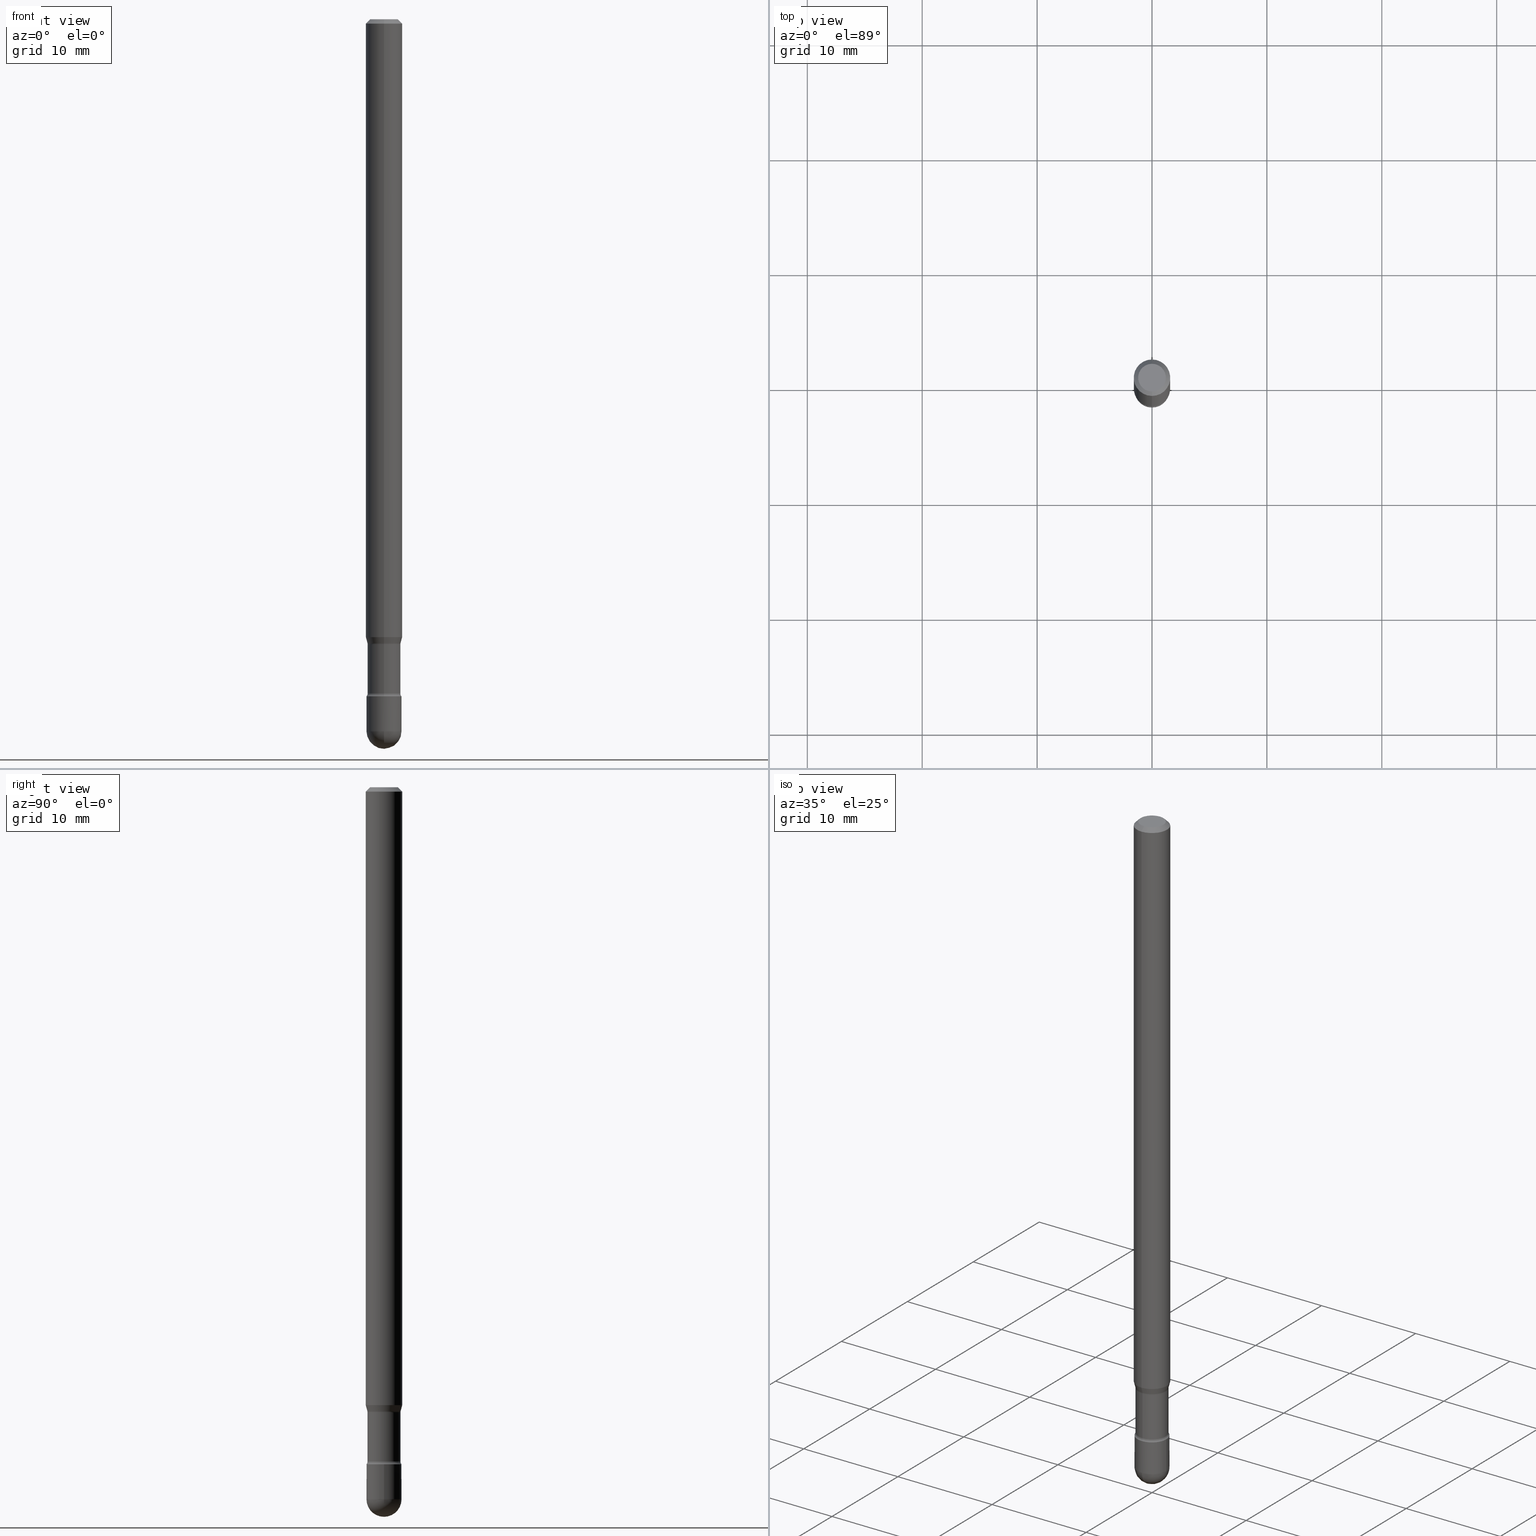
[diagram: canonical four-view strip — front | top / right | iso, engineering-drawing reading convention]
A machine part, canonical four-view strip (front | top / right | iso — engineering-drawing reading convention). The complete STEP part file that produces these views, byte-faithful:
ISO-10303-21;
HEADER;
FILE_DESCRIPTION (( 'STEP AP203' ),
    '1' );
FILE_NAME ('03831.STEP',
    '2024-04-09T20:39:17',
    ( '' ),
    ( '' ),
    'SwSTEP 2.0',
    'SolidWorks 2023',
    '' );
FILE_SCHEMA (( 'CONFIG_CONTROL_DESIGN' ));
ENDSEC;

DATA;
#1 = CARTESIAN_POINT ( 'NONE',  ( 5.228743345129894784E-29, -7.464959952092564511E-15, -2.138092501787273392 ) ) ;
#2 = ORIENTED_EDGE ( 'NONE', *, *, #38, .T. ) ;
#3 = EDGE_CURVE ( 'NONE', #201, #42, #99, .T. ) ;
#4 = CARTESIAN_POINT ( 'NONE',  ( 0.000000000000000000, 0.000000000000000000, 0.000000000000000000 ) ) ;
#5 = DIRECTION ( 'NONE',  ( -2.445517834592790864E-29, 3.491411127372861124E-15, 1.000000000000000000 ) ) ;
#6 = CARTESIAN_POINT ( 'NONE',  ( -0.05999999999999999084, -7.883399944990626241E-15, -2.440000000000000391 ) ) ;
#7 = ORIENTED_EDGE ( 'NONE', *, *, #370, .F. ) ;
#8 = CARTESIAN_POINT ( 'NONE',  ( 0.05999999999999999084, -8.728703347107863365E-15, -2.440000000000000391 ) ) ;
#9 = PLANE ( 'NONE',  #46 ) ;
#10 = EDGE_LOOP ( 'NONE', ( #24, #406, #297, #288 ) ) ;
#11 = AXIS2_PLACEMENT_3D ( 'NONE', #533, #375, #50 ) ;
#12 = EDGE_CURVE ( 'NONE', #66, #416, #283, .T. ) ;
#13 = AXIS2_PLACEMENT_3D ( 'NONE', #161, #514, #35 ) ;
#14 = CARTESIAN_POINT ( 'NONE',  ( -3.974081752708996825E-16, -0.05691111260567144337, -2.138092501787272948 ) ) ;
#15 = DIRECTION ( 'NONE',  ( -6.982962677686265922E-15, -1.000000000000000000, 4.370956789862821150E-15 ) ) ;
#16 = ORIENTED_EDGE ( 'NONE', *, *, #387, .T. ) ;
#17 = ORIENTED_EDGE ( 'NONE', *, *, #187, .F. ) ;
#18 =( LENGTH_UNIT ( ) NAMED_UNIT ( * ) SI_UNIT ( $, .METRE. ) );
#19 = PERSON ( 'UNSPECIFIED', 'UNSPECIFIED', 'UNSPECIFIED', ('UNSPECIFIED'), ('UNSPECIFIED'), ('UNSPECIFIED') ) ;
#20 =( GEOMETRIC_REPRESENTATION_CONTEXT ( 3 ) GLOBAL_UNCERTAINTY_ASSIGNED_CONTEXT ( ( #261 ) ) GLOBAL_UNIT_ASSIGNED_CONTEXT ( ( #335, #544, #548 ) ) REPRESENTATION_CONTEXT ( 'NONE', 'WORKASPACE' ) );
#21 = DIRECTION ( 'NONE',  ( -2.445468806185136597E-29, 3.491481338843145583E-15, 1.000000000000000000 ) ) ;
#22 = ORIENTED_EDGE ( 'NONE', *, *, #94, .T. ) ;
#23 = CARTESIAN_POINT ( 'NONE',  ( -4.364351673553912750E-16, -0.06250000000000005551, -0.01499999999999986587 ) ) ;
#24 = ORIENTED_EDGE ( 'NONE', *, *, #3, .F. ) ;
#25 = DIRECTION ( 'NONE',  ( -2.445468806185136877E-29, 3.491481338843145188E-15, 1.000000000000000000 ) ) ;
#26 = EDGE_LOOP ( 'NONE', ( #284, #22, #129, #394 ) ) ;
#27 = DIRECTION ( 'NONE',  ( -2.445517834592790864E-29, 3.491411127372861124E-15, 1.000000000000000000 ) ) ;
#28 = ADVANCED_FACE ( 'NONE', ( #539 ), #144, .T. ) ;
#29 = CIRCLE ( 'NONE', #523, 0.04749999999999999362 ) ;
#30 = COORDINATED_UNIVERSAL_TIME_OFFSET ( 5, 0, .BEHIND. ) ;
#31 = DIRECTION ( 'NONE',  ( 2.445517834592790864E-29, -3.491411127372861124E-15, -1.000000000000000000 ) ) ;
#32 = ORIENTED_EDGE ( 'NONE', *, *, #309, .T. ) ;
#33 = LINE ( 'NONE', #430, #163 ) ;
#34 = APPROVAL_STATUS ( 'not_yet_approved' ) ;
#35 = DIRECTION ( 'NONE',  ( 1.000000000000000000, -6.982962677686269077E-15, 0.000000000000000000 ) ) ;
#36 = ORIENTED_EDGE ( 'NONE', *, *, #477, .F. ) ;
#37 = PERSON_AND_ORGANIZATION ( #19, #222 ) ;
#38 = EDGE_CURVE ( 'NONE', #486, #419, #64, .T. ) ;
#39 = DIRECTION ( 'NONE',  ( -6.982962677686265922E-15, -1.000000000000000000, 3.491411127372860730E-15 ) ) ;
#40 = CARTESIAN_POINT ( 'NONE',  ( 4.440892098501144838E-16, 0.06249999999999263089, -2.117234490073830244 ) ) ;
#41 = ORIENTED_EDGE ( 'NONE', *, *, #432, .T. ) ;
#42 = VERTEX_POINT ( 'NONE', #399 ) ;
#43 = DIRECTION ( 'NONE',  ( -2.445517834592790864E-29, 3.491411127372861124E-15, 1.000000000000000000 ) ) ;
#44 = ADVANCED_FACE ( 'NONE', ( #277 ), #88, .F. ) ;
#45 = AXIS2_PLACEMENT_3D ( 'NONE', #166, #357, #176 ) ;
#46 = AXIS2_PLACEMENT_3D ( 'NONE', #363, #393, #535 ) ;
#47 = DIRECTION ( 'NONE',  ( -6.982962677686265922E-15, -1.000000000000000000, 4.800201346603757313E-15 ) ) ;
#48 = VERTEX_POINT ( 'NONE', #565 ) ;
#49 = DIRECTION ( 'NONE',  ( -2.445468806185136597E-29, 3.491481338843145583E-15, 1.000000000000000000 ) ) ;
#50 = DIRECTION ( 'NONE',  ( -6.982962677686265133E-15, -1.000000000000000000, 4.843702116425997641E-15 ) ) ;
#51 = ADVANCED_FACE ( 'NONE', ( #266 ), #154, .F. ) ;
#52 = DIRECTION ( 'NONE',  ( -2.445517834592790864E-29, 3.491411127372860730E-15, 1.000000000000000000 ) ) ;
#53 = FACE_OUTER_BOUND ( 'NONE', #251, .T. ) ;
#54 = ORIENTED_EDGE ( 'NONE', *, *, #187, .T. ) ;
#55 = CIRCLE ( 'NONE', #540, 0.05639999999999998487 ) ;
#56 = VECTOR ( 'NONE', #262, 39.37007874015748143 ) ;
#57 = VECTOR ( 'NONE', #102, 39.37007874015748143 ) ;
#58 = CARTESIAN_POINT ( 'NONE',  ( 3.668276751889206264E-31, -5.237116691059320726E-17, -0.01500000000000008271 ) ) ;
#59 = ORIENTED_EDGE ( 'NONE', *, *, #177, .F. ) ;
#60 = DIRECTION ( 'NONE',  ( 0.000000000000000000, 0.000000000000000000, 1.000000000000000000 ) ) ;
#61 = EDGE_LOOP ( 'NONE', ( #36, #97, #150, #373 ) ) ;
#62 = EDGE_CURVE ( 'NONE', #348, #566, #446, .T. ) ;
#63 = ORIENTED_EDGE ( 'NONE', *, *, #344, .T. ) ;
#64 = CIRCLE ( 'NONE', #45, 0.05999999999999994921 ) ;
#65 = CARTESIAN_POINT ( 'NONE',  ( 5.966943887091733341E-29, -8.519214466777275048E-15, -2.440000000000000391 ) ) ;
#66 = VERTEX_POINT ( 'NONE', #270 ) ;
#67 = CARTESIAN_POINT ( 'NONE',  ( -4.189777606611192441E-16, -0.06000000000000810241, -2.319999999999999840 ) ) ;
#68 = ORIENTED_EDGE ( 'NONE', *, *, #256, .F. ) ;
#69 = EDGE_CURVE ( 'NONE', #48, #148, #417, .T. ) ;
#70 = FACE_OUTER_BOUND ( 'NONE', #556, .T. ) ;
#71 = CARTESIAN_POINT ( 'NONE',  ( -1.169113584055446105E-44, 1.669184350826100908E-30, 4.780733988912460139E-16 ) ) ;
#72 = ORIENTED_EDGE ( 'NONE', *, *, #86, .T. ) ;
#73 = VECTOR ( 'NONE', #52, 39.37007874015748143 ) ;
#74 = DATE_TIME_ROLE ( 'classification_date' ) ;
#75 = ADVANCED_FACE ( 'NONE', ( #263 ), #273, .T. ) ;
#76 = VERTEX_POINT ( 'NONE', #6 ) ;
#77 = CARTESIAN_POINT ( 'NONE',  ( 4.043777764598483226E-16, 0.05691111260565651780, -2.138092501787273392 ) ) ;
#78 = APPROVAL ( #460, 'UNSPECIFIED' ) ;
#79 = CALENDAR_DATE ( 2024, 9, 4 ) ;
#80 = FACE_OUTER_BOUND ( 'NONE', #10, .T. ) ;
#81 = CIRCLE ( 'NONE', #491, 0.05639999999999998487 ) ;
#82 = APPROVAL_DATE_TIME ( #561, #327 ) ;
#83 = TOROIDAL_SURFACE ( 'NONE', #305, 0.07139999999999999125, 0.01500000000000002373 ) ;
#84 = DIRECTION ( 'NONE',  ( -6.982962677686265922E-15, -1.000000000000000000, 3.491411127372861124E-15 ) ) ;
#85 = FACE_OUTER_BOUND ( 'NONE', #552, .T. ) ;
#86 = EDGE_CURVE ( 'NONE', #367, #42, #55, .T. ) ;
#87 = DIRECTION ( 'NONE',  ( -2.445517834592790864E-29, 3.491411127372860730E-15, 1.000000000000000000 ) ) ;
#88 = PLANE ( 'NONE',  #173 ) ;
#89 = CARTESIAN_POINT ( 'NONE',  ( 6.116237514330379097E-29, -8.725029406710421437E-15, -2.500000000000000000 ) ) ;
#90 = PRODUCT_DEFINITION ( 'UNKNOWN', '', #183, #165 ) ;
#91 = CARTESIAN_POINT ( 'NONE',  ( 5.228743345129894784E-29, -7.464959952092564511E-15, -2.138092501787273392 ) ) ;
#92 = APPROVAL_PERSON_ORGANIZATION ( #507, #78, #190 ) ;
#93 = DIRECTION ( 'NONE',  ( -6.982962677686265133E-15, -1.000000000000000000, 4.843702116426000007E-15 ) ) ;
#94 = EDGE_CURVE ( 'NONE', #486, #443, #162, .T. ) ;
#95 = CARTESIAN_POINT ( 'NONE',  ( 5.649647131350973229E-29, -8.066198791933100712E-15, -2.310251153914436806 ) ) ;
#96 = FACE_OUTER_BOUND ( 'NONE', #366, .T. ) ;
#97 = ORIENTED_EDGE ( 'NONE', *, *, #194, .F. ) ;
#98 = CYLINDRICAL_SURFACE ( 'NONE', #368, 0.06250000000000000000 ) ;
#99 = LINE ( 'NONE', #286, #57 ) ;
#100 = AXIS2_PLACEMENT_3D ( 'NONE', #479, #342, #170 ) ;
#101 = CIRCLE ( 'NONE', #145, 0.05999999999999999778 ) ;
#102 = DIRECTION ( 'NONE',  ( -2.445517834592790864E-29, 3.491411127372860730E-15, 1.000000000000000000 ) ) ;
#103 = ADVANCED_FACE ( 'NONE', ( #53 ), #254, .F. ) ;
#104 = EDGE_LOOP ( 'NONE', ( #499, #440, #171, #421 ) ) ;
#105 = CARTESIAN_POINT ( 'NONE',  ( 2.023909377797069351E-45, -2.888819863080917368E-31, -8.275036711638382857E-17 ) ) ;
#106 = ORIENTED_EDGE ( 'NONE', *, *, #495, .T. ) ;
#107 = CC_DESIGN_PERSON_AND_ORGANIZATION_ASSIGNMENT ( #341, #160, ( #466 ) ) ;
#108 = ORIENTED_EDGE ( 'NONE', *, *, #132, .T. ) ;
#109 = CARTESIAN_POINT ( 'NONE',  ( -1.169113584055446105E-44, 1.669184350826100908E-30, 4.780733988912460139E-16 ) ) ;
#110 = AXIS2_PLACEMENT_3D ( 'NONE', #169, #353, #84 ) ;
#111 = CONICAL_SURFACE ( 'NONE', #369, 0.05691111260566398405, 0.2617993877991477980 ) ;
#112 = CARTESIAN_POINT ( 'NONE',  ( 5.649647131350973229E-29, -8.066198791933100712E-15, -2.310251153914436806 ) ) ;
#113 = PERSON_AND_ORGANIZATION_ROLE ( 'design_supplier' ) ;
#114 = CARTESIAN_POINT ( 'NONE',  ( 5.673601376255274580E-29, -8.100073815505038219E-15, -2.320000000000000284 ) ) ;
#115 = APPROVAL_STATUS ( 'not_yet_approved' ) ;
#116 = DIRECTION ( 'NONE',  ( 4.937700262164548042E-15, 0.7071067811865451302, -0.7071067811865499042 ) ) ;
#117 = AXIS2_PLACEMENT_3D ( 'NONE', #282, #412, #279 ) ;
#118 = VECTOR ( 'NONE', #511, 39.37007874015748143 ) ;
#119 = LOCAL_TIME ( 16, 39, 17.00000000000000000, #558 ) ;
#120 = PERSON_AND_ORGANIZATION ( #19, #222 ) ;
#121 = DIRECTION ( 'NONE',  ( -2.445468806185136597E-29, 3.491481338843145583E-15, 1.000000000000000000 ) ) ;
#122 = DIRECTION ( 'NONE',  ( -6.982962677686265922E-15, -1.000000000000000000, 3.491411127372860730E-15 ) ) ;
#123 = FACE_OUTER_BOUND ( 'NONE', #501, .T. ) ;
#124 = CLOSED_SHELL ( 'NONE', ( #51, #271, #103, #359, #512, #75, #468, #126, #563, #44, #334, #543, #325, #459 ) ) ;
#125 = AXIS2_PLACEMENT_3D ( 'NONE', #503, #138, #493 ) ;
#126 = ADVANCED_FACE ( 'NONE', ( #494 ), #98, .T. ) ;
#127 = CIRCLE ( 'NONE', #247, 0.06250000000000000000 ) ;
#128 = CARTESIAN_POINT ( 'NONE',  ( 5.073275133327680713E-16, 0.07139999999999194213, -2.310251153914437250 ) ) ;
#129 = ORIENTED_EDGE ( 'NONE', *, *, #502, .F. ) ;
#130 = ORIENTED_EDGE ( 'NONE', *, *, #62, .F. ) ;
#131 = CARTESIAN_POINT ( 'NONE',  ( 5.238132526377788520E-29, -7.478664998702409610E-15, -2.141974787463811314 ) ) ;
#132 = EDGE_CURVE ( 'NONE', #42, #367, #81, .T. ) ;
#133 = AXIS2_PLACEMENT_3D ( 'NONE', #455, #276, #151 ) ;
#134 = LOCAL_TIME ( 16, 39, 17.00000000000000000, #30 ) ;
#135 = EDGE_LOOP ( 'NONE', ( #411, #7 ) ) ;
#136 = CARTESIAN_POINT ( 'NONE',  ( -0.05999999999999999084, 4.263256414560600464E-16, -2.951361054152942712E-30 ) ) ;
#137 = CARTESIAN_POINT ( 'NONE',  ( 5.228743345129894784E-29, -7.464959952092564511E-15, -2.138092501787273392 ) ) ;
#138 = DIRECTION ( 'NONE',  ( -1.000000000000000000, 7.105427357601001070E-15, -4.926315508542082329E-29 ) ) ;
#139 = DIRECTION ( 'NONE',  ( -6.982962677686265922E-15, -1.000000000000000000, 3.491411127372861124E-15 ) ) ;
#140 = ORIENTED_EDGE ( 'NONE', *, *, #243, .T. ) ;
#141 = EDGE_CURVE ( 'NONE', #348, #374, #303, .T. ) ;
#142 = CARTESIAN_POINT ( 'NONE',  ( 3.668276751889206264E-31, -5.237116691059320726E-17, -0.01500000000000008271 ) ) ;
#143 = AXIS2_PLACEMENT_3D ( 'NONE', #95, #27, #181 ) ;
#144 = CYLINDRICAL_SURFACE ( 'NONE', #483, 0.05999999999999999084 ) ;
#145 = AXIS2_PLACEMENT_3D ( 'NONE', #386, #302, #384 ) ;
#146 = CC_DESIGN_APPROVAL ( #78, ( #90 ) ) ;
#147 = CALENDAR_DATE ( 2024, 9, 4 ) ;
#148 = VERTEX_POINT ( 'NONE', #451 ) ;
#149 = DIRECTION ( 'NONE',  ( -2.445517834592790864E-29, 3.491411127372861124E-15, 1.000000000000000000 ) ) ;
#150 = ORIENTED_EDGE ( 'NONE', *, *, #177, .T. ) ;
#151 = DIRECTION ( 'NONE',  ( -6.982962677686258822E-15, -1.000000000000000000, 0.000000000000000000 ) ) ;
#152 = CARTESIAN_POINT ( 'NONE',  ( 0.000000000000000000, 0.000000000000000000, 0.000000000000000000 ) ) ;
#153 = DIRECTION ( 'NONE',  ( 7.105427357601006592E-15, 1.000000000000000000, 0.000000000000000000 ) ) ;
#154 = TOROIDAL_SURFACE ( 'NONE', #110, 0.07139999999999999125, 0.01500000000000002373 ) ;
#155 = CIRCLE ( 'NONE', #551, 0.01499999999999999424 ) ;
#156 = VERTEX_POINT ( 'NONE', #67 ) ;
#157 = CARTESIAN_POINT ( 'NONE',  ( 5.238237543990852603E-29, -7.478514607503268714E-15, -2.141974787463811314 ) ) ;
#158 = SHAPE_DEFINITION_REPRESENTATION ( #306, #311 ) ;
#159 = DIRECTION ( 'NONE',  ( -2.445517834592790864E-29, 3.491411127372861124E-15, 1.000000000000000000 ) ) ;
#160 = PERSON_AND_ORGANIZATION_ROLE ( 'classification_officer' ) ;
#161 = CARTESIAN_POINT ( 'NONE',  ( 5.966943887091733341E-29, -8.519214466777275048E-15, -2.440000000000000391 ) ) ;
#162 = CIRCLE ( 'NONE', #125, 0.05999999999999994921 ) ;
#163 = VECTOR ( 'NONE', #519, 39.37007874015748143 ) ;
#164 = PERSON_AND_ORGANIZATION ( #19, #222 ) ;
#165 = DESIGN_CONTEXT ( 'detailed design', #298, 'design' ) ;
#166 = CARTESIAN_POINT ( 'NONE',  ( 5.966943887091733341E-29, -8.519214466777275048E-15, -2.440000000000000391 ) ) ;
#167 = FACE_OUTER_BOUND ( 'NONE', #452, .T. ) ;
#168 = EDGE_CURVE ( 'NONE', #377, #189, #245, .T. ) ;
#169 = CARTESIAN_POINT ( 'NONE',  ( 5.238132526377788520E-29, -7.478664998702409610E-15, -2.141974787463811314 ) ) ;
#170 = DIRECTION ( 'NONE',  ( 6.982962677686265922E-15, 1.000000000000000000, -4.553079989440442247E-15 ) ) ;
#171 = ORIENTED_EDGE ( 'NONE', *, *, #62, .T. ) ;
#172 = CC_DESIGN_PERSON_AND_ORGANIZATION_ASSIGNMENT ( #37, #310, ( #183 ) ) ;
#173 = AXIS2_PLACEMENT_3D ( 'NONE', #313, #439, #481 ) ;
#174 = CIRCLE ( 'NONE', #474, 0.05999999999999999778 ) ;
#175 = DIRECTION ( 'NONE',  ( -2.445468806185136597E-29, 3.491481338843145583E-15, 1.000000000000000000 ) ) ;
#176 = DIRECTION ( 'NONE',  ( 6.982962677686265922E-15, 1.000000000000000000, 0.000000000000000000 ) ) ;
#177 = EDGE_CURVE ( 'NONE', #564, #156, #323, .T. ) ;
#178 = CARTESIAN_POINT ( 'NONE',  ( -3.974081752708996825E-16, -0.05691111260567144337, -2.138092501787272948 ) ) ;
#179 = DIRECTION ( 'NONE',  ( -2.445517834592790864E-29, 3.491411127372861124E-15, 1.000000000000000000 ) ) ;
#180 = CARTESIAN_POINT ( 'NONE',  ( 4.189777606612354039E-16, 0.05999999999999145600, -2.440000000000000391 ) ) ;
#181 = DIRECTION ( 'NONE',  ( -6.982962677686265922E-15, -1.000000000000000000, 3.491411127372861124E-15 ) ) ;
#182 = VECTOR ( 'NONE', #25, 39.37007874015748143 ) ;
#183 = PRODUCT_DEFINITION_FORMATION_WITH_SPECIFIED_SOURCE ( 'ANY', '', #534, .NOT_KNOWN. ) ;
#184 = DIRECTION ( 'NONE',  ( -2.445468806185136597E-29, 3.491481338843145583E-15, 1.000000000000000000 ) ) ;
#185 = PERSON_AND_ORGANIZATION ( #19, #222 ) ;
#186 = ORIENTED_EDGE ( 'NONE', *, *, #414, .T. ) ;
#187 = EDGE_CURVE ( 'NONE', #566, #402, #213, .T. ) ;
#188 = CARTESIAN_POINT ( 'NONE',  ( 5.673487630349517039E-29, -8.100236706116098414E-15, -2.320000000000000284 ) ) ;
#189 = VERTEX_POINT ( 'NONE', #14 ) ;
#190 = APPROVAL_ROLE ( '' ) ;
#191 = ORIENTED_EDGE ( 'NONE', *, *, #477, .T. ) ;
#192 = CIRCLE ( 'NONE', #233, 0.05999999999999999084 ) ;
#193 = FACE_OUTER_BOUND ( 'NONE', #26, .T. ) ;
#194 = EDGE_CURVE ( 'NONE', #564, #201, #231, .T. ) ;
#195 = EDGE_LOOP ( 'NONE', ( #218, #269, #32, #431 ) ) ;
#196 = CARTESIAN_POINT ( 'NONE',  ( 5.228743345129894784E-29, -7.464959952092564511E-15, -2.138092501787273392 ) ) ;
#197 = DIRECTION ( 'NONE',  ( 1.000000000000000000, -6.982962677686268288E-15, 0.000000000000000000 ) ) ;
#198 = EDGE_LOOP ( 'NONE', ( #537, #41, #17, #130 ) ) ;
#199 = CC_DESIGN_PERSON_AND_ORGANIZATION_ASSIGNMENT ( #244, #515, ( #90 ) ) ;
#200 = DIRECTION ( 'NONE',  ( 1.000000000000000000, -7.105427357601001070E-15, 4.926314648699558939E-29 ) ) ;
#201 = VERTEX_POINT ( 'NONE', #250 ) ;
#202 = DIRECTION ( 'NONE',  ( 1.000000000000000000, -6.982962677686269077E-15, 0.000000000000000000 ) ) ;
#203 = AXIS2_PLACEMENT_3D ( 'NONE', #211, #343, #312 ) ;
#204 = AXIS2_PLACEMENT_3D ( 'NONE', #420, #241, #413 ) ;
#205 = CALENDAR_DATE ( 2024, 9, 4 ) ;
#206 = FACE_OUTER_BOUND ( 'NONE', #135, .T. ) ;
#207 = EDGE_LOOP ( 'NONE', ( #333, #268, #108, #259 ) ) ;
#208 = EDGE_CURVE ( 'NONE', #443, #232, #293, .T. ) ;
#209 = SECURITY_CLASSIFICATION_LEVEL ( 'unclassified' ) ;
#210 = CYLINDRICAL_SURFACE ( 'NONE', #362, 0.05639999999999999181 ) ;
#211 = CARTESIAN_POINT ( 'NONE',  ( 5.649760399286329776E-29, -8.066036585802858688E-15, -2.310251153914436806 ) ) ;
#212 = ORIENTED_EDGE ( 'NONE', *, *, #557, .T. ) ;
#213 = CIRCLE ( 'NONE', #530, 0.06250000000000000000 ) ;
#214 = AXIS2_PLACEMENT_3D ( 'NONE', #114, #315, #438 ) ;
#215 = CALENDAR_DATE ( 2024, 9, 4 ) ;
#216 = MANIFOLD_SOLID_BREP ( 'Body-Move/Copy2[1]', #223 ) ;
#217 = CARTESIAN_POINT ( 'NONE',  ( 5.966943887091733341E-29, -8.519214466777275048E-15, -2.440000000000000391 ) ) ;
#218 = ORIENTED_EDGE ( 'NONE', *, *, #447, .F. ) ;
#219 = SPHERICAL_SURFACE ( 'NONE', #100, 0.05999999999999994921 ) ;
#220 = ORIENTED_EDGE ( 'NONE', *, *, #309, .F. ) ;
#221 = MANIFOLD_SOLID_BREP ( 'Body-Move/Copy2[2]', #124 ) ;
#222 = ORGANIZATION ( 'UNSPECIFIED', 'UNSPECIFIED', '' ) ;
#223 = CLOSED_SHELL ( 'NONE', ( #480, #553, #464, #320, #28 ) ) ;
#224 = LOCAL_TIME ( 16, 39, 17.00000000000000000, #382 ) ;
#225 = LINE ( 'NONE', #178, #428 ) ;
#226 = ORIENTED_EDGE ( 'NONE', *, *, #3, .T. ) ;
#227 = APPROVAL ( #34, 'UNSPECIFIED' ) ;
#228 = CARTESIAN_POINT ( 'NONE',  ( 5.177734705490524081E-29, -7.392136057901375357E-15, -2.117234490073829800 ) ) ;
#229 = DIRECTION ( 'NONE',  ( -2.445517834592790864E-29, 3.491411127372861124E-15, 1.000000000000000000 ) ) ;
#230 = DIRECTION ( 'NONE',  ( -6.982962677686265922E-15, -1.000000000000000000, 3.491411127372861124E-15 ) ) ;
#231 = CIRCLE ( 'NONE', #11, 0.05640000000000001262 ) ;
#232 = VERTEX_POINT ( 'NONE', #8 ) ;
#233 = AXIS2_PLACEMENT_3D ( 'NONE', #528, #321, #489 ) ;
#234 = DIRECTION ( 'NONE',  ( 7.105427357601006592E-15, 1.000000000000000000, 0.000000000000000000 ) ) ;
#235 = ORIENTED_EDGE ( 'NONE', *, *, #141, .F. ) ;
#236 = EDGE_CURVE ( 'NONE', #402, #566, #550, .T. ) ;
#237 = ORIENTED_EDGE ( 'NONE', *, *, #351, .F. ) ;
#238 = CARTESIAN_POINT ( 'NONE',  ( -3.938390950214490011E-16, -0.05640000000000808256, -2.310251153914436806 ) ) ;
#239 = VERTEX_POINT ( 'NONE', #549 ) ;
#240 = CC_DESIGN_PERSON_AND_ORGANIZATION_ASSIGNMENT ( #120, #113, ( #183 ) ) ;
#241 = DIRECTION ( 'NONE',  ( -2.445517834592790864E-29, 3.491411127372861124E-15, 1.000000000000000000 ) ) ;
#242 = ORIENTED_EDGE ( 'NONE', *, *, #168, .T. ) ;
#243 = EDGE_CURVE ( 'NONE', #76, #48, #403, .T. ) ;
#244 = PERSON_AND_ORGANIZATION ( #19, #222 ) ;
#245 = CIRCLE ( 'NONE', #560, 0.05691111260566398405 ) ;
#246 = DIRECTION ( 'NONE',  ( -2.445517834592790864E-29, 3.491411127372861124E-15, 1.000000000000000000 ) ) ;
#247 = AXIS2_PLACEMENT_3D ( 'NONE', #228, #450, #15 ) ;
#248 = ORIENTED_EDGE ( 'NONE', *, *, #94, .F. ) ;
#249 = DIRECTION ( 'NONE',  ( 6.982962677686265922E-15, 1.000000000000000000, -4.553079989440442247E-15 ) ) ;
#250 = CARTESIAN_POINT ( 'NONE',  ( 4.135358722124349213E-16, 0.05639999999999194269, -2.310251153914437250 ) ) ;
#251 = EDGE_LOOP ( 'NONE', ( #469, #191, #509, #59 ) ) ;
#252 = DATE_AND_TIME ( #215, #119 ) ;
#253 = CARTESIAN_POINT ( 'NONE',  ( -1.169113584055446105E-44, 1.669184350826100908E-30, 4.780733988912460139E-16 ) ) ;
#254 = TOROIDAL_SURFACE ( 'NONE', #143, 0.07140000000000001901, 0.01500000000000000291 ) ;
#255 = ORIENTED_EDGE ( 'NONE', *, *, #447, .T. ) ;
#256 = EDGE_CURVE ( 'NONE', #377, #42, #350, .T. ) ;
#257 = AXIS2_PLACEMENT_3D ( 'NONE', #142, #332, #292 ) ;
#258 = CARTESIAN_POINT ( 'NONE',  ( -4.364351673553397525E-16, -0.06250000000000736911, -2.117234490073829356 ) ) ;
#259 = ORIENTED_EDGE ( 'NONE', *, *, #414, .F. ) ;
#260 = CALENDAR_DATE ( 2024, 9, 4 ) ;
#261 = UNCERTAINTY_MEASURE_WITH_UNIT (LENGTH_MEASURE( 1.000000000000000082E-05 ), #335, 'distance_accuracy_value', 'NONE');
#262 = DIRECTION ( 'NONE',  ( 1.839019923739583355E-15, 0.2588190451025225713, 0.9659258262890678681 ) ) ;
#263 = FACE_OUTER_BOUND ( 'NONE', #330, .T. ) ;
#264 = PLANE ( 'NONE',  #497 ) ;
#265 = DIRECTION ( 'NONE',  ( 6.982962677686265922E-15, 1.000000000000000000, -3.483106191921935554E-15 ) ) ;
#266 = FACE_OUTER_BOUND ( 'NONE', #207, .T. ) ;
#267 = DIRECTION ( 'NONE',  ( 1.000000000000000000, -6.982962677686266711E-15, 4.876176775795935793E-29 ) ) ;
#268 = ORIENTED_EDGE ( 'NONE', *, *, #256, .T. ) ;
#269 = ORIENTED_EDGE ( 'NONE', *, *, #12, .F. ) ;
#270 = CARTESIAN_POINT ( 'NONE',  ( 3.840629472727447874E-16, 0.04749999999999999362, -2.485923956665947374E-16 ) ) ;
#271 = ADVANCED_FACE ( 'NONE', ( #70 ), #516, .T. ) ;
#272 = DIRECTION ( 'NONE',  ( -2.445517834592790864E-29, 3.491411127372861124E-15, 1.000000000000000000 ) ) ;
#273 = CONICAL_SURFACE ( 'NONE', #408, 0.05691111260566398405, 0.2617993877991477980 ) ;
#274 = CYLINDRICAL_SURFACE ( 'NONE', #338, 0.05999999999999999084 ) ;
#275 = EDGE_LOOP ( 'NONE', ( #518, #524 ) ) ;
#276 = DIRECTION ( 'NONE',  ( -1.000000000000000000, 6.982962677686265922E-15, -4.883557194083112340E-29 ) ) ;
#277 = FACE_OUTER_BOUND ( 'NONE', #294, .T. ) ;
#278 = CARTESIAN_POINT ( 'NONE',  ( 4.440892098500625669E-16, 0.06250000000000000000, 2.598602034304422183E-16 ) ) ;
#279 = DIRECTION ( 'NONE',  ( -6.982962677686265922E-15, -1.000000000000000000, 4.370956789862821150E-15 ) ) ;
#280 = DIRECTION ( 'NONE',  ( -1.000000000000000000, 6.982962677686265922E-15, -4.883557194083112340E-29 ) ) ;
#281 = ORIENTED_EDGE ( 'NONE', *, *, #487, .T. ) ;
#282 = CARTESIAN_POINT ( 'NONE',  ( 5.177734705490524081E-29, -7.392136057901375357E-15, -2.117234490073829800 ) ) ;
#283 = CIRCLE ( 'NONE', #444, 0.04749999999999999362 ) ;
#284 = ORIENTED_EDGE ( 'NONE', *, *, #38, .F. ) ;
#285 = CONICAL_SURFACE ( 'NONE', #257, 0.06250000000000000000, 0.7853981633974483900 ) ;
#286 = CARTESIAN_POINT ( 'NONE',  ( 4.007461029686963973E-16, 0.05639999999999999181, 2.811578113074167152E-16 ) ) ;
#287 = MECHANICAL_CONTEXT ( 'NONE', #383, 'mechanical' ) ;
#288 = ORIENTED_EDGE ( 'NONE', *, *, #132, .F. ) ;
#289 = LENGTH_MEASURE_WITH_UNIT ( LENGTH_MEASURE( 0.02539999999999999897 ), #18 );
#290 = ORIENTED_EDGE ( 'NONE', *, *, #400, .F. ) ;
#291 = CC_DESIGN_PERSON_AND_ORGANIZATION_ASSIGNMENT ( #185, #422, ( #534 ) ) ;
#292 = DIRECTION ( 'NONE',  ( 6.982962677686265922E-15, 1.000000000000000000, -3.483106191921935554E-15 ) ) ;
#293 = CIRCLE ( 'NONE', #361, 0.05999999999999999084 ) ;
#294 = EDGE_LOOP ( 'NONE', ( #473, #212 ) ) ;
#295 = DIRECTION ( 'NONE',  ( -6.982962677686265922E-15, -1.000000000000000000, 3.483106191921935554E-15 ) ) ;
#296 = CC_DESIGN_APPROVAL ( #227, ( #466 ) ) ;
#297 = ORIENTED_EDGE ( 'NONE', *, *, #340, .T. ) ;
#298 = APPLICATION_CONTEXT ( 'configuration controlled 3d designs of mechanical parts and assemblies' ) ;
#299 = CARTESIAN_POINT ( 'NONE',  ( 5.073275133327638312E-16, 0.07139999999999252500, -2.141974787463811314 ) ) ;
#300 = PERSON_AND_ORGANIZATION ( #19, #222 ) ;
#301 = EDGE_CURVE ( 'NONE', #201, #564, #379, .T. ) ;
#302 = DIRECTION ( 'NONE',  ( -2.445517834592790864E-29, 3.491411127372861124E-15, 1.000000000000000000 ) ) ;
#303 = CIRCLE ( 'NONE', #117, 0.06250000000000000000 ) ;
#304 = DIRECTION ( 'NONE',  ( -6.982962677686265922E-15, -1.000000000000000000, 3.491411127372860730E-15 ) ) ;
#305 = AXIS2_PLACEMENT_3D ( 'NONE', #131, #43, #230 ) ;
#306 = PRODUCT_DEFINITION_SHAPE ( 'NONE', 'NONE',  #90 ) ;
#307 = DATE_AND_TIME ( #79, #224 ) ;
#308 = CARTESIAN_POINT ( 'NONE',  ( 3.668276751889206264E-31, -5.237116691059320726E-17, -0.01500000000000008271 ) ) ;
#309 = EDGE_CURVE ( 'NONE', #66, #402, #555, .T. ) ;
#310 = PERSON_AND_ORGANIZATION_ROLE ( 'creator' ) ;
#311 = ADVANCED_BREP_SHAPE_REPRESENTATION ( '03831', ( #216, #221, #396 ), #20 ) ;
#312 = DIRECTION ( 'NONE',  ( -6.982962677686265133E-15, -1.000000000000000000, 4.843702116425997641E-15 ) ) ;
#313 = CARTESIAN_POINT ( 'NONE',  ( 3.316907271900976096E-16, 0.04749999999999999362, 3.181948733722017152E-17 ) ) ;
#314 = APPROVAL_ROLE ( '' ) ;
#315 = DIRECTION ( 'NONE',  ( -2.445517834592790864E-29, 3.491411127372861124E-15, 1.000000000000000000 ) ) ;
#316 = AXIS2_PLACEMENT_3D ( 'NONE', #308, #31, #265 ) ;
#317 = CARTESIAN_POINT ( 'NONE',  ( -3.773273898774340269E-16, -0.04749999999999999362, 8.309166143382705561E-17 ) ) ;
#318 = ORIENTED_EDGE ( 'NONE', *, *, #208, .T. ) ;
#319 = DIRECTION ( 'NONE',  ( -4.851104656540964275E-15, -0.7071067811865500152, -0.7071067811865450192 ) ) ;
#320 = ADVANCED_FACE ( 'NONE', ( #167 ), #219, .T. ) ;
#321 = DIRECTION ( 'NONE',  ( -2.445468806185136597E-29, 3.491481338843145583E-15, 1.000000000000000000 ) ) ;
#322 = ORIENTED_EDGE ( 'NONE', *, *, #557, .F. ) ;
#323 = CIRCLE ( 'NONE', #133, 0.01500000000000001159 ) ;
#324 = AXIS2_PLACEMENT_3D ( 'NONE', #1, #442, #47 ) ;
#325 = ADVANCED_FACE ( 'NONE', ( #80 ), #210, .T. ) ;
#326 = DIRECTION ( 'NONE',  ( 1.000000000000000000, -7.105427357601001070E-15, 4.926314648699558939E-29 ) ) ;
#327 = APPROVAL ( #115, 'UNSPECIFIED' ) ;
#328 = ORIENTED_EDGE ( 'NONE', *, *, #502, .T. ) ;
#329 = FACE_OUTER_BOUND ( 'NONE', #195, .T. ) ;
#330 = EDGE_LOOP ( 'NONE', ( #281, #425, #235, #545 ) ) ;
#331 = CONICAL_SURFACE ( 'NONE', #316, 0.06250000000000000000, 0.7853981633974483900 ) ;
#332 = DIRECTION ( 'NONE',  ( 2.445517834592790864E-29, -3.491411127372861124E-15, -1.000000000000000000 ) ) ;
#333 = ORIENTED_EDGE ( 'NONE', *, *, #168, .F. ) ;
#334 = ADVANCED_FACE ( 'NONE', ( #206 ), #264, .F. ) ;
#335 =( CONVERSION_BASED_UNIT ( 'INCH', #289 ) LENGTH_UNIT ( ) NAMED_UNIT ( #345 ) );
#336 = DIRECTION ( 'NONE',  ( 1.000000000000000000, 0.000000000000000000, 0.000000000000000000 ) ) ;
#337 = ORIENTED_EDGE ( 'NONE', *, *, #194, .T. ) ;
#338 = AXIS2_PLACEMENT_3D ( 'NONE', #453, #175, #267 ) ;
#339 = DIRECTION ( 'NONE',  ( -6.982962677686265922E-15, -1.000000000000000000, 4.800201346603757313E-15 ) ) ;
#340 = EDGE_CURVE ( 'NONE', #564, #367, #476, .T. ) ;
#341 = PERSON_AND_ORGANIZATION ( #19, #222 ) ;
#342 = DIRECTION ( 'NONE',  ( -1.000000000000000000, 6.982962677686265922E-15, -4.883557194083113462E-29 ) ) ;
#343 = DIRECTION ( 'NONE',  ( -2.445517834592790864E-29, 3.491411127372861124E-15, 1.000000000000000000 ) ) ;
#344 = EDGE_CURVE ( 'NONE', #232, #419, #475, .T. ) ;
#345 = DIMENSIONAL_EXPONENTS ( 1.000000000000000000, 0.000000000000000000, 0.000000000000000000, 0.000000000000000000, 0.000000000000000000, 0.000000000000000000, 0.000000000000000000 ) ;
#346 = ORIENTED_EDGE ( 'NONE', *, *, #243, .F. ) ;
#347 = DIRECTION ( 'NONE',  ( -2.445517834592790864E-29, 3.491411127372861124E-15, 1.000000000000000000 ) ) ;
#348 = VERTEX_POINT ( 'NONE', #258 ) ;
#349 = CARTESIAN_POINT ( 'NONE',  ( -4.287811248607203282E-16, -0.06250000000000005551, -0.01499999999999986587 ) ) ;
#350 = CIRCLE ( 'NONE', #505, 0.01500000000000001853 ) ;
#351 = EDGE_CURVE ( 'NONE', #232, #148, #33, .T. ) ;
#352 = CARTESIAN_POINT ( 'NONE',  ( -4.985835351867469066E-16, -0.07140000000000747138, -2.141974787463810870 ) ) ;
#353 = DIRECTION ( 'NONE',  ( -2.445517834592790864E-29, 3.491411127372861124E-15, 1.000000000000000000 ) ) ;
#354 = DIRECTION ( 'NONE',  ( -1.807323732225313179E-15, -0.2588190451025157435, 0.9659258262890694224 ) ) ;
#355 = EDGE_LOOP ( 'NONE', ( #68, #547, #186, #72 ) ) ;
#356 = DIRECTION ( 'NONE',  ( -6.982962677686265133E-15, -1.000000000000000000, 4.843702116426000007E-15 ) ) ;
#357 = DIRECTION ( 'NONE',  ( 1.000000000000000000, -6.982962677686265922E-15, 4.883557194083112340E-29 ) ) ;
#358 = LINE ( 'NONE', #349, #465 ) ;
#359 = ADVANCED_FACE ( 'NONE', ( #123 ), #331, .T. ) ;
#360 = DIRECTION ( 'NONE',  ( -2.445517834592790864E-29, 3.491411127372861124E-15, 1.000000000000000000 ) ) ;
#361 = AXIS2_PLACEMENT_3D ( 'NONE', #467, #184, #202 ) ;
#362 = AXIS2_PLACEMENT_3D ( 'NONE', #253, #159, #304 ) ;
#363 = CARTESIAN_POINT ( 'NONE',  ( 5.673487630349517039E-29, -8.100236706116098414E-15, -2.320000000000000284 ) ) ;
#364 = DIRECTION ( 'NONE',  ( -6.982962677686265922E-15, -1.000000000000000000, 3.483106191921935554E-15 ) ) ;
#365 = FACE_OUTER_BOUND ( 'NONE', #61, .T. ) ;
#366 = EDGE_LOOP ( 'NONE', ( #16, #140, #520, #237, #63 ) ) ;
#367 = VERTEX_POINT ( 'NONE', #388 ) ;
#368 = AXIS2_PLACEMENT_3D ( 'NONE', #109, #229, #508 ) ;
#369 = AXIS2_PLACEMENT_3D ( 'NONE', #137, #5, #522 ) ;
#370 = EDGE_CURVE ( 'NONE', #239, #156, #445, .T. ) ;
#371 = CC_DESIGN_SECURITY_CLASSIFICATION ( #466, ( #183 ) ) ;
#372 = DIRECTION ( 'NONE',  ( -1.000000000000000000, 6.982962677686265922E-15, -4.883557194083113462E-29 ) ) ;
#373 = ORIENTED_EDGE ( 'NONE', *, *, #376, .T. ) ;
#374 = VERTEX_POINT ( 'NONE', #40 ) ;
#375 = DIRECTION ( 'NONE',  ( -2.445517834592790864E-29, 3.491411127372861124E-15, 1.000000000000000000 ) ) ;
#376 = EDGE_CURVE ( 'NONE', #156, #239, #101, .T. ) ;
#377 = VERTEX_POINT ( 'NONE', #559 ) ;
#378 = APPROVAL_DATE_TIME ( #307, #227 ) ;
#379 = CIRCLE ( 'NONE', #203, 0.05640000000000001262 ) ;
#380 = AXIS2_PLACEMENT_3D ( 'NONE', #65, #372, #249 ) ;
#381 = DIRECTION ( 'NONE',  ( -2.445517834592790864E-29, 3.491411127372861124E-15, 1.000000000000000000 ) ) ;
#382 = COORDINATED_UNIVERSAL_TIME_OFFSET ( 5, 0, .BEHIND. ) ;
#383 = APPLICATION_CONTEXT ( 'configuration controlled 3d designs of mechanical parts and assemblies' ) ;
#384 = DIRECTION ( 'NONE',  ( -6.982962677686265922E-15, -1.000000000000000000, 4.553079989440439092E-15 ) ) ;
#385 = ORIENTED_EDGE ( 'NONE', *, *, #423, .F. ) ;
#386 = CARTESIAN_POINT ( 'NONE',  ( 5.673601376255274580E-29, -8.100073815505038219E-15, -2.320000000000000284 ) ) ;
#387 = EDGE_CURVE ( 'NONE', #419, #76, #492, .T. ) ;
#388 = CARTESIAN_POINT ( 'NONE',  ( -3.938390950214528468E-16, -0.05640000000000746500, -2.141974787463810870 ) ) ;
#389 = APPROVAL_PERSON_ORGANIZATION ( #164, #327, #510 ) ;
#390 = DIRECTION ( 'NONE',  ( 1.000000000000000000, -6.982962677686269077E-15, 0.000000000000000000 ) ) ;
#391 = CARTESIAN_POINT ( 'NONE',  ( -3.938390950215053553E-16, -0.05639999999999999181, 6.749889864750753619E-16 ) ) ;
#392 = ORIENTED_EDGE ( 'NONE', *, *, #208, .F. ) ;
#393 = DIRECTION ( 'NONE',  ( -2.438088387897960049E-29, 3.491481338843145188E-15, 1.000000000000000000 ) ) ;
#394 = ORIENTED_EDGE ( 'NONE', *, *, #387, .F. ) ;
#395 = VECTOR ( 'NONE', #87, 39.37007874015748143 ) ;
#396 = AXIS2_PLACEMENT_3D ( 'NONE', #152, #60, #336 ) ;
#397 = CARTESIAN_POINT ( 'NONE',  ( 5.673487630349517039E-29, -8.100236706116098414E-15, -2.320000000000000284 ) ) ;
#398 = DIRECTION ( 'NONE',  ( -6.982962677686265922E-15, -1.000000000000000000, 4.800201346603757313E-15 ) ) ;
#399 = CARTESIAN_POINT ( 'NONE',  ( 4.007461029687528995E-16, 0.05639999999999250474, -2.141974787463811314 ) ) ;
#400 = EDGE_CURVE ( 'NONE', #377, #374, #478, .T. ) ;
#401 = CYLINDRICAL_SURFACE ( 'NONE', #204, 0.06250000000000000000 ) ;
#402 = VERTEX_POINT ( 'NONE', #433 ) ;
#403 = LINE ( 'NONE', #136, #182 ) ;
#404 = DIRECTION ( 'NONE',  ( 1.000000000000000000, -6.982962677686266711E-15, 4.876176775795935793E-29 ) ) ;
#405 = FACE_OUTER_BOUND ( 'NONE', #275, .T. ) ;
#406 = ORIENTED_EDGE ( 'NONE', *, *, #301, .T. ) ;
#407 = DIRECTION ( 'NONE',  ( -2.445517834592790864E-29, 3.491411127372861124E-15, 1.000000000000000000 ) ) ;
#408 = AXIS2_PLACEMENT_3D ( 'NONE', #91, #272, #398 ) ;
#409 = AXIS2_PLACEMENT_3D ( 'NONE', #217, #121, #390 ) ;
#410 = ORIENTED_EDGE ( 'NONE', *, *, #69, .F. ) ;
#411 = ORIENTED_EDGE ( 'NONE', *, *, #376, .F. ) ;
#412 = DIRECTION ( 'NONE',  ( -2.445517834592790864E-29, 3.491411127372861124E-15, 1.000000000000000000 ) ) ;
#413 = DIRECTION ( 'NONE',  ( -6.982962677686265922E-15, -1.000000000000000000, 3.491411127372861124E-15 ) ) ;
#414 = EDGE_CURVE ( 'NONE', #189, #367, #437, .T. ) ;
#415 = DIRECTION ( 'NONE',  ( -2.445517834592790864E-29, 3.491411127372861124E-15, 1.000000000000000000 ) ) ;
#416 = VERTEX_POINT ( 'NONE', #317 ) ;
#417 = CIRCLE ( 'NONE', #463, 0.05999999999999999778 ) ;
#418 = LOCAL_TIME ( 16, 39, 17.00000000000000000, #554 ) ;
#419 = VERTEX_POINT ( 'NONE', #180 ) ;
#420 = CARTESIAN_POINT ( 'NONE',  ( -1.169113584055446105E-44, 1.669184350826100908E-30, 4.780733988912460139E-16 ) ) ;
#421 = ORIENTED_EDGE ( 'NONE', *, *, #236, .F. ) ;
#422 = PERSON_AND_ORGANIZATION_ROLE ( 'design_owner' ) ;
#423 = EDGE_CURVE ( 'NONE', #374, #348, #127, .T. ) ;
#424 = CARTESIAN_POINT ( 'NONE',  ( 3.668276751889206264E-31, -5.237116691059320726E-17, -0.01500000000000008271 ) ) ;
#425 = ORIENTED_EDGE ( 'NONE', *, *, #400, .T. ) ;
#426 = SPHERICAL_SURFACE ( 'NONE', #380, 0.05999999999999994921 ) ;
#427 = DATE_TIME_ROLE ( 'creation_date' ) ;
#428 = VECTOR ( 'NONE', #354, 39.37007874015748854 ) ;
#429 = DIRECTION ( 'NONE',  ( -2.445517834592790864E-29, 3.491411127372860730E-15, 1.000000000000000000 ) ) ;
#430 = CARTESIAN_POINT ( 'NONE',  ( 0.05999999999999999084, -4.189777606611759435E-16, 2.925706065477561055E-30 ) ) ;
#431 = ORIENTED_EDGE ( 'NONE', *, *, #236, .T. ) ;
#432 = EDGE_CURVE ( 'NONE', #374, #402, #484, .T. ) ;
#433 = CARTESIAN_POINT ( 'NONE',  ( 4.440892098501147796E-16, 0.06249999999999995837, -0.01500000000000030129 ) ) ;
#434 = CARTESIAN_POINT ( 'NONE',  ( 5.238237543990852603E-29, -7.478514607503268714E-15, -2.141974787463811314 ) ) ;
#435 = AXIS2_PLACEMENT_3D ( 'NONE', #424, #381, #364 ) ;
#436 = CARTESIAN_POINT ( 'NONE',  ( 4.189777606612326922E-16, 0.05999999999999190009, -2.320000000000000284 ) ) ;
#437 = CIRCLE ( 'NONE', #562, 0.01500000000000001853 ) ;
#438 = DIRECTION ( 'NONE',  ( -6.982962677686265922E-15, -1.000000000000000000, 4.553079989440439092E-15 ) ) ;
#439 = DIRECTION ( 'NONE',  ( 2.445517834592790864E-29, -3.491411127372860730E-15, -1.000000000000000000 ) ) ;
#440 = ORIENTED_EDGE ( 'NONE', *, *, #423, .T. ) ;
#441 = DIRECTION ( 'NONE',  ( -2.445468806185136597E-29, 3.491481338843145583E-15, 1.000000000000000000 ) ) ;
#442 = DIRECTION ( 'NONE',  ( -2.445517834592790864E-29, 3.491411127372861124E-15, 1.000000000000000000 ) ) ;
#443 = VERTEX_POINT ( 'NONE', #448 ) ;
#444 = AXIS2_PLACEMENT_3D ( 'NONE', #462, #246, #458 ) ;
#445 = CIRCLE ( 'NONE', #214, 0.05999999999999999778 ) ;
#446 = LINE ( 'NONE', #527, #395 ) ;
#447 = EDGE_CURVE ( 'NONE', #416, #566, #358, .T. ) ;
#448 = CARTESIAN_POINT ( 'NONE',  ( -4.263256414560001423E-16, -0.06000000000000849792, -2.439999999999999947 ) ) ;
#449 = CC_DESIGN_DATE_AND_TIME_ASSIGNMENT ( #252, #74, ( #466 ) ) ;
#450 = DIRECTION ( 'NONE',  ( -2.445517834592790864E-29, 3.491411127372861124E-15, 1.000000000000000000 ) ) ;
#451 = CARTESIAN_POINT ( 'NONE',  ( 0.05999999999999999778, -8.519214466777275048E-15, -2.320000000000000284 ) ) ;
#452 = EDGE_LOOP ( 'NONE', ( #248, #2, #526, #392 ) ) ;
#453 = CARTESIAN_POINT ( 'NONE',  ( 0.000000000000000000, 0.000000000000000000, 0.000000000000000000 ) ) ;
#454 = ORIENTED_EDGE ( 'NONE', *, *, #86, .F. ) ;
#455 = CARTESIAN_POINT ( 'NONE',  ( -4.985835351867429623E-16, -0.07140000000000808200, -2.310251153914436806 ) ) ;
#456 = AXIS2_PLACEMENT_3D ( 'NONE', #71, #347, #122 ) ;
#457 = APPLICATION_PROTOCOL_DEFINITION ( 'international standard', 'config_control_design', 1994, #383 ) ;
#458 = DIRECTION ( 'NONE',  ( -6.982962677686266711E-15, -1.000000000000000000, 3.491411127372861519E-15 ) ) ;
#459 = ADVANCED_FACE ( 'NONE', ( #485 ), #83, .F. ) ;
#460 = APPROVAL_STATUS ( 'not_yet_approved' ) ;
#461 = APPROVAL_DATE_TIME ( #500, #78 ) ;
#462 = CARTESIAN_POINT ( 'NONE',  ( 2.023909377797069351E-45, -2.888819863080917368E-31, -8.275036711638382857E-17 ) ) ;
#463 = AXIS2_PLACEMENT_3D ( 'NONE', #397, #441, #488 ) ;
#464 = ADVANCED_FACE ( 'NONE', ( #405 ), #9, .T. ) ;
#465 = VECTOR ( 'NONE', #319, 39.37007874015748143 ) ;
#466 = SECURITY_CLASSIFICATION ( '', '', #209 ) ;
#467 = CARTESIAN_POINT ( 'NONE',  ( 5.966943887091733341E-29, -8.519214466777275048E-15, -2.440000000000000391 ) ) ;
#468 = ADVANCED_FACE ( 'NONE', ( #85 ), #111, .T. ) ;
#469 = ORIENTED_EDGE ( 'NONE', *, *, #301, .F. ) ;
#470 = DIRECTION ( 'NONE',  ( -2.445517834592790864E-29, 3.491411127372861124E-15, 1.000000000000000000 ) ) ;
#471 = ORIENTED_EDGE ( 'NONE', *, *, #351, .T. ) ;
#472 = CARTESIAN_POINT ( 'NONE',  ( 4.364351673553919652E-16, 0.06249999999999995143, -0.01500000000000030129 ) ) ;
#473 = ORIENTED_EDGE ( 'NONE', *, *, #12, .T. ) ;
#474 = AXIS2_PLACEMENT_3D ( 'NONE', #188, #21, #197 ) ;
#475 = CIRCLE ( 'NONE', #409, 0.05999999999999999084 ) ;
#476 = LINE ( 'NONE', #391, #118 ) ;
#477 = EDGE_CURVE ( 'NONE', #201, #239, #155, .T. ) ;
#478 = LINE ( 'NONE', #77, #56 ) ;
#479 = CARTESIAN_POINT ( 'NONE',  ( 5.966943887091733341E-29, -8.519214466777275048E-15, -2.440000000000000391 ) ) ;
#480 = ADVANCED_FACE ( 'NONE', ( #96 ), #274, .T. ) ;
#481 = DIRECTION ( 'NONE',  ( 6.982962677686265922E-15, 1.000000000000000000, -3.491411127372860730E-15 ) ) ;
#482 = DATE_AND_TIME ( #205, #418 ) ;
#483 = AXIS2_PLACEMENT_3D ( 'NONE', #4, #49, #404 ) ;
#484 = LINE ( 'NONE', #278, #73 ) ;
#485 = FACE_OUTER_BOUND ( 'NONE', #355, .T. ) ;
#486 = VERTEX_POINT ( 'NONE', #89 ) ;
#487 = EDGE_CURVE ( 'NONE', #189, #377, #541, .T. ) ;
#488 = DIRECTION ( 'NONE',  ( 1.000000000000000000, -6.982962677686268288E-15, 0.000000000000000000 ) ) ;
#489 = DIRECTION ( 'NONE',  ( 1.000000000000000000, -6.982962677686269077E-15, 0.000000000000000000 ) ) ;
#490 = ORIENTED_EDGE ( 'NONE', *, *, #340, .F. ) ;
#491 = AXIS2_PLACEMENT_3D ( 'NONE', #157, #360, #93 ) ;
#492 = CIRCLE ( 'NONE', #13, 0.05999999999999999084 ) ;
#493 = DIRECTION ( 'NONE',  ( -7.105427357601001070E-15, -1.000000000000000000, 0.000000000000000000 ) ) ;
#494 = FACE_OUTER_BOUND ( 'NONE', #104, .T. ) ;
#495 = EDGE_CURVE ( 'NONE', #189, #348, #225, .T. ) ;
#496 = EDGE_LOOP ( 'NONE', ( #346, #328, #318, #471, #410 ) ) ;
#497 = AXIS2_PLACEMENT_3D ( 'NONE', #436, #429, #39 ) ;
#498 = TOROIDAL_SURFACE ( 'NONE', #513, 0.07140000000000001901, 0.01500000000000000291 ) ;
#499 = ORIENTED_EDGE ( 'NONE', *, *, #432, .F. ) ;
#500 = DATE_AND_TIME ( #147, #531 ) ;
#501 = EDGE_LOOP ( 'NONE', ( #322, #255, #54, #220 ) ) ;
#502 = EDGE_CURVE ( 'NONE', #76, #443, #192, .T. ) ;
#503 = CARTESIAN_POINT ( 'NONE',  ( 5.966943887091733341E-29, -8.519214466777275048E-15, -2.440000000000000391 ) ) ;
#504 = PRODUCT_RELATED_PRODUCT_CATEGORY ( 'detail', '', ( #534 ) ) ;
#505 = AXIS2_PLACEMENT_3D ( 'NONE', #299, #200, #153 ) ;
#506 = CC_DESIGN_APPROVAL ( #327, ( #183 ) ) ;
#507 = PERSON_AND_ORGANIZATION ( #19, #222 ) ;
#508 = DIRECTION ( 'NONE',  ( -6.982962677686265922E-15, -1.000000000000000000, 3.491411127372861124E-15 ) ) ;
#509 = ORIENTED_EDGE ( 'NONE', *, *, #370, .T. ) ;
#510 = APPROVAL_ROLE ( '' ) ;
#511 = DIRECTION ( 'NONE',  ( -2.445517834592790864E-29, 3.491411127372860730E-15, 1.000000000000000000 ) ) ;
#512 = ADVANCED_FACE ( 'NONE', ( #529 ), #401, .T. ) ;
#513 = AXIS2_PLACEMENT_3D ( 'NONE', #112, #149, #139 ) ;
#514 = DIRECTION ( 'NONE',  ( -2.445468806185136597E-29, 3.491481338843145583E-15, 1.000000000000000000 ) ) ;
#515 = PERSON_AND_ORGANIZATION_ROLE ( 'creator' ) ;
#516 = CYLINDRICAL_SURFACE ( 'NONE', #456, 0.05639999999999999181 ) ;
#517 = EDGE_CURVE ( 'NONE', #148, #48, #174, .T. ) ;
#518 = ORIENTED_EDGE ( 'NONE', *, *, #517, .T. ) ;
#519 = DIRECTION ( 'NONE',  ( -2.445468806185136877E-29, 3.491481338843145188E-15, 1.000000000000000000 ) ) ;
#520 = ORIENTED_EDGE ( 'NONE', *, *, #517, .F. ) ;
#521 = VECTOR ( 'NONE', #116, 39.37007874015748143 ) ;
#522 = DIRECTION ( 'NONE',  ( -6.982962677686265922E-15, -1.000000000000000000, 4.800201346603757313E-15 ) ) ;
#523 = AXIS2_PLACEMENT_3D ( 'NONE', #105, #415, #536 ) ;
#524 = ORIENTED_EDGE ( 'NONE', *, *, #69, .T. ) ;
#525 = DIRECTION ( 'NONE',  ( -6.982962677686267499E-15, -1.000000000000000000, 0.000000000000000000 ) ) ;
#526 = ORIENTED_EDGE ( 'NONE', *, *, #344, .F. ) ;
#527 = CARTESIAN_POINT ( 'NONE',  ( -4.364351673553916201E-16, -0.06250000000000000000, 6.962865943520499082E-16 ) ) ;
#528 = CARTESIAN_POINT ( 'NONE',  ( 5.966943887091733341E-29, -8.519214466777275048E-15, -2.440000000000000391 ) ) ;
#529 = FACE_OUTER_BOUND ( 'NONE', #198, .T. ) ;
#530 = AXIS2_PLACEMENT_3D ( 'NONE', #58, #470, #295 ) ;
#531 = LOCAL_TIME ( 16, 39, 17.00000000000000000, #542 ) ;
#532 = APPROVAL_PERSON_ORGANIZATION ( #300, #227, #314 ) ;
#533 = CARTESIAN_POINT ( 'NONE',  ( 5.649760399286329776E-29, -8.066036585802858688E-15, -2.310251153914436806 ) ) ;
#534 = PRODUCT ( '03831', '03831', '', ( #287 ) ) ;
#535 = DIRECTION ( 'NONE',  ( 1.000000000000000000, -6.982962677686265922E-15, 4.876176775795935793E-29 ) ) ;
#536 = DIRECTION ( 'NONE',  ( -6.982962677686266711E-15, -1.000000000000000000, 3.491411127372861519E-15 ) ) ;
#537 = ORIENTED_EDGE ( 'NONE', *, *, #141, .T. ) ;
#538 = APPLICATION_PROTOCOL_DEFINITION ( 'international standard', 'config_control_design', 1994, #298 ) ;
#539 = FACE_OUTER_BOUND ( 'NONE', #496, .T. ) ;
#540 = AXIS2_PLACEMENT_3D ( 'NONE', #434, #179, #356 ) ;
#541 = CIRCLE ( 'NONE', #324, 0.05691111260566398405 ) ;
#542 = COORDINATED_UNIVERSAL_TIME_OFFSET ( 5, 0, .BEHIND. ) ;
#543 = ADVANCED_FACE ( 'NONE', ( #365 ), #498, .F. ) ;
#544 =( NAMED_UNIT ( * ) PLANE_ANGLE_UNIT ( ) SI_UNIT ( $, .RADIAN. ) );
#545 = ORIENTED_EDGE ( 'NONE', *, *, #495, .F. ) ;
#546 = CC_DESIGN_DATE_AND_TIME_ASSIGNMENT ( #482, #427, ( #90 ) ) ;
#547 = ORIENTED_EDGE ( 'NONE', *, *, #487, .F. ) ;
#548 =( NAMED_UNIT ( * ) SI_UNIT ( $, .STERADIAN. ) SOLID_ANGLE_UNIT ( ) );
#549 = CARTESIAN_POINT ( 'NONE',  ( 4.263256414561168444E-16, 0.05999999999999190009, -2.320000000000000284 ) ) ;
#550 = CIRCLE ( 'NONE', #435, 0.06250000000000000000 ) ;
#551 = AXIS2_PLACEMENT_3D ( 'NONE', #128, #326, #234 ) ;
#552 = EDGE_LOOP ( 'NONE', ( #290, #242, #106, #385 ) ) ;
#553 = ADVANCED_FACE ( 'NONE', ( #193 ), #426, .T. ) ;
#554 = COORDINATED_UNIVERSAL_TIME_OFFSET ( 5, 0, .BEHIND. ) ;
#555 = LINE ( 'NONE', #472, #521 ) ;
#556 = EDGE_LOOP ( 'NONE', ( #337, #226, #454, #490 ) ) ;
#557 = EDGE_CURVE ( 'NONE', #416, #66, #29, .T. ) ;
#558 = COORDINATED_UNIVERSAL_TIME_OFFSET ( 5, 0, .BEHIND. ) ;
#559 = CARTESIAN_POINT ( 'NONE',  ( 4.242334931549814032E-16, 0.05691111260565651780, -2.138092501787273392 ) ) ;
#560 = AXIS2_PLACEMENT_3D ( 'NONE', #196, #407, #339 ) ;
#561 = DATE_AND_TIME ( #260, #134 ) ;
#562 = AXIS2_PLACEMENT_3D ( 'NONE', #352, #280, #525 ) ;
#563 = ADVANCED_FACE ( 'NONE', ( #329 ), #285, .T. ) ;
#564 = VERTEX_POINT ( 'NONE', #238 ) ;
#565 = CARTESIAN_POINT ( 'NONE',  ( -0.06000000000000001166, -7.883399944990626241E-15, -2.320000000000000284 ) ) ;
#566 = VERTEX_POINT ( 'NONE', #23 ) ;
ENDSEC;
END-ISO-10303-21;
